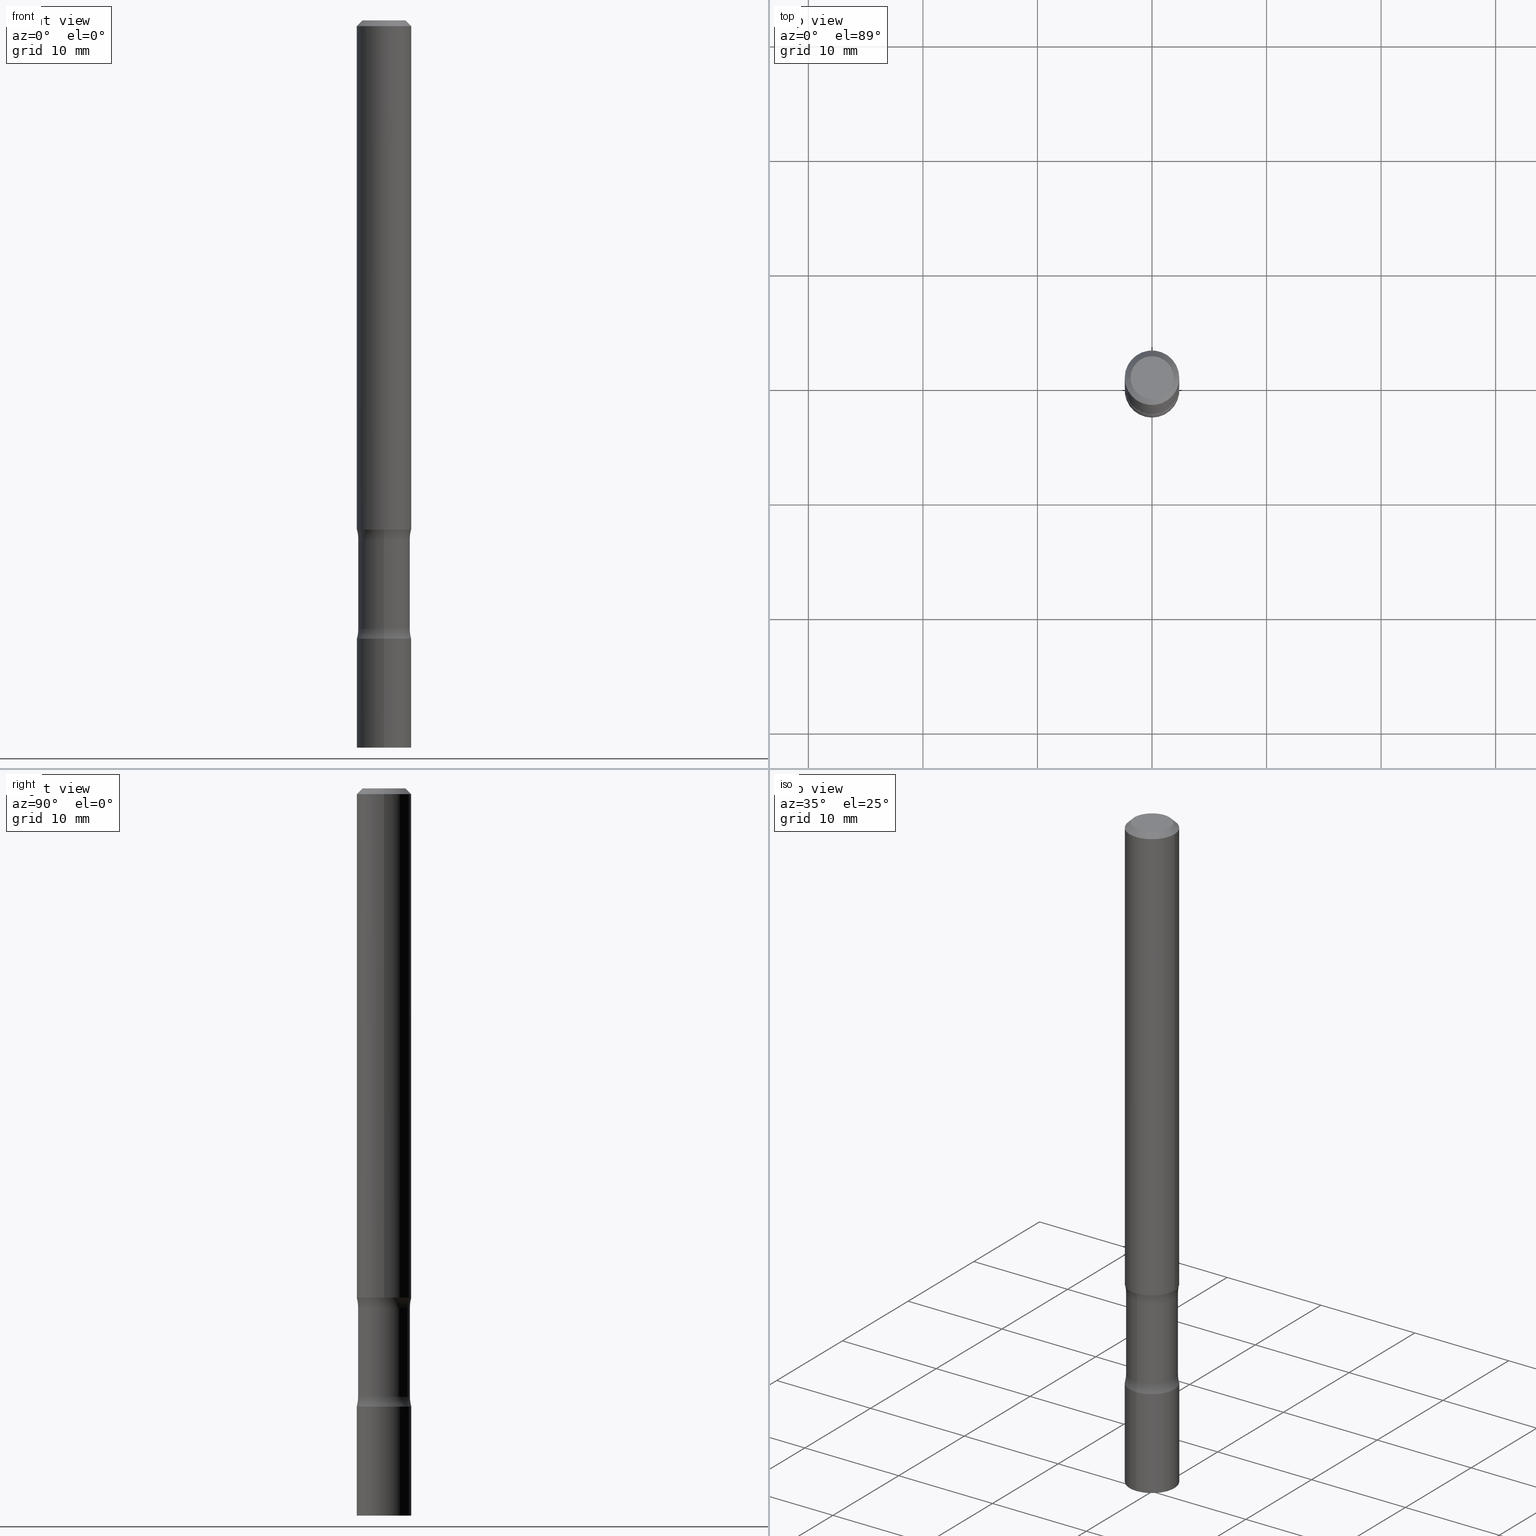
[diagram: canonical four-view strip — front | top / right | iso, engineering-drawing reading convention]
A machine part, canonical four-view strip (front | top / right | iso — engineering-drawing reading convention). The complete STEP part file that produces these views, byte-faithful:
ISO-10303-21;
HEADER;
FILE_DESCRIPTION (( 'STEP AP203' ),
    '1' );
FILE_NAME ('37766.STEP',
    '2024-03-11T13:24:02',
    ( '' ),
    ( '' ),
    'SwSTEP 2.0',
    'SolidWorks 2023',
    '' );
FILE_SCHEMA (( 'CONFIG_CONTROL_DESIGN' ));
ENDSEC;

DATA;
#1 = DIRECTION ( 'NONE',  ( -6.982962677686265922E-15, -1.000000000000000000, 0.000000000000000000 ) ) ;
#2 = PRODUCT ( '37766', '37766', '', ( #291 ) ) ;
#3 = CALENDAR_DATE ( 2024, 11, 3 ) ;
#4 = DIRECTION ( 'NONE',  ( 0.000000000000000000, 0.000000000000000000, 1.000000000000000000 ) ) ;
#5 = APPROVAL_DATE_TIME ( #93, #87 ) ;
#6 = CC_DESIGN_APPROVAL ( #87, ( #13 ) ) ;
#7 = CARTESIAN_POINT ( 'NONE',  ( 0.000000000000000000, 0.000000000000000000, 0.000000000000000000 ) ) ;
#8 = EDGE_LOOP ( 'NONE', ( #505, #57, #426, #196 ) ) ;
#9 = PERSON_AND_ORGANIZATION ( #307, #319 ) ;
#10 = CARTESIAN_POINT ( 'NONE',  ( 5.108949665098794430E-29, -7.307796357737152502E-15, -2.091089789977795821 ) ) ;
#11 = CARTESIAN_POINT ( 'NONE',  ( -6.546527510330356365E-16, -0.09375000000000743849, -2.125000000000000000 ) ) ;
#12 = VERTEX_POINT ( 'NONE', #350 ) ;
#13 = PRODUCT_DEFINITION ( 'UNKNOWN', '', #140, #36 ) ;
#14 = AXIS2_PLACEMENT_3D ( 'NONE', #357, #317, #170 ) ;
#15 = VECTOR ( 'NONE', #54, 39.37007874015748143 ) ;
#16 = ORIENTED_EDGE ( 'NONE', *, *, #464, .F. ) ;
#17 = EDGE_LOOP ( 'NONE', ( #157, #415 ) ) ;
#18 = ORIENTED_EDGE ( 'NONE', *, *, #364, .F. ) ;
#19 = ORIENTED_EDGE ( 'NONE', *, *, #394, .T. ) ;
#20 = ORIENTED_EDGE ( 'NONE', *, *, #483, .T. ) ;
#21 = FACE_OUTER_BOUND ( 'NONE', #8, .T. ) ;
#22 = CIRCLE ( 'NONE', #334, 0.09375000000000001388 ) ;
#23 = ORIENTED_EDGE ( 'NONE', *, *, #452, .T. ) ;
#24 = DIRECTION ( 'NONE',  ( 6.982962677686266711E-15, 1.000000000000000000, -2.913971193241878794E-15 ) ) ;
#25 = ORIENTED_EDGE ( 'NONE', *, *, #125, .F. ) ;
#26 = ORIENTED_EDGE ( 'NONE', *, *, #286, .T. ) ;
#27 = EDGE_CURVE ( 'NONE', #460, #229, #281, .T. ) ;
#28 = ORIENTED_EDGE ( 'NONE', *, *, #27, .T. ) ;
#29 = FACE_OUTER_BOUND ( 'NONE', #218, .T. ) ;
#30 = VERTEX_POINT ( 'NONE', #498 ) ;
#31 = DIRECTION ( 'NONE',  ( 0.7071067811865467956, -7.319954787623254468E-15, -0.7071067811865482389 ) ) ;
#32 = DIRECTION ( 'NONE',  ( -6.982962677686265922E-15, -1.000000000000000000, 2.913971193241880372E-15 ) ) ;
#33 = DIRECTION ( 'NONE',  ( 2.445468806185136597E-29, -3.491481338843145583E-15, -1.000000000000000000 ) ) ;
#34 = DIRECTION ( 'NONE',  ( 1.000000000000000000, -6.982962677686261189E-15, 0.000000000000000000 ) ) ;
#35 = DIRECTION ( 'NONE',  ( 2.577039791092079409E-29, -3.303064199901000429E-15, -1.000000000000000000 ) ) ;
#36 = DESIGN_CONTEXT ( 'detailed design', #453, 'design' ) ;
#37 = CARTESIAN_POINT ( 'NONE',  ( 0.000000000000000000, 0.000000000000000000, 0.000000000000000000 ) ) ;
#38 = DIRECTION ( 'NONE',  ( 2.445335353247201149E-29, -3.491672451045938200E-15, -1.000000000000000000 ) ) ;
#39 = FACE_OUTER_BOUND ( 'NONE', #299, .T. ) ;
#40 = EDGE_LOOP ( 'NONE', ( #301, #191, #342, #369 ) ) ;
#41 = CARTESIAN_POINT ( 'NONE',  ( 5.196621213143415268E-29, -7.419397845041685201E-15, -2.125000000000000000 ) ) ;
#42 = DIRECTION ( 'NONE',  ( -2.445335353247201709E-29, 3.491672451045937805E-15, 1.000000000000000000 ) ) ;
#43 = EDGE_CURVE ( 'NONE', #309, #460, #146, .T. ) ;
#44 = DIRECTION ( 'NONE',  ( -1.000000000000000000, 6.982962677686265922E-15, -4.876176775795935793E-29 ) ) ;
#45 = TOROIDAL_SURFACE ( 'NONE', #482, 0.2140625000000000167, 0.1249999999999999584 ) ;
#46 = AXIS2_PLACEMENT_3D ( 'NONE', #302, #337, #149 ) ;
#47 = CARTESIAN_POINT ( 'NONE',  ( 0.000000000000000000, 0.000000000000000000, 0.000000000000000000 ) ) ;
#48 = AXIS2_PLACEMENT_3D ( 'NONE', #128, #421, #66 ) ;
#49 = DATE_TIME_ROLE ( 'classification_date' ) ;
#50 = ADVANCED_FACE ( 'NONE', ( #126 ), #88, .F. ) ;
#51 = DIRECTION ( 'NONE',  ( -6.982962677686265922E-15, -1.000000000000000000, 3.303064199901000035E-15 ) ) ;
#52 = PERSON_AND_ORGANIZATION_ROLE ( 'classification_officer' ) ;
#53 = ADVANCED_FACE ( 'NONE', ( #361 ), #210, .T. ) ;
#54 = DIRECTION ( 'NONE',  ( -0.7071067811865467956, 2.468850131082249172E-15, -0.7071067811865482389 ) ) ;
#55 = ORIENTED_EDGE ( 'NONE', *, *, #494, .F. ) ;
#56 = AXIS2_PLACEMENT_3D ( 'NONE', #451, #457, #414 ) ;
#57 = ORIENTED_EDGE ( 'NONE', *, *, #274, .T. ) ;
#58 = AXIS2_PLACEMENT_3D ( 'NONE', #207, #42, #175 ) ;
#59 = ADVANCED_FACE ( 'NONE', ( #311 ), #355, .F. ) ;
#60 = CARTESIAN_POINT ( 'NONE',  ( 0.000000000000000000, 0.000000000000000000, 0.000000000000000000 ) ) ;
#61 = AXIS2_PLACEMENT_3D ( 'NONE', #47, #213, #129 ) ;
#62 = EDGE_LOOP ( 'NONE', ( #420, #265 ) ) ;
#63 = EDGE_CURVE ( 'NONE', #460, #309, #404, .T. ) ;
#64 = DIRECTION ( 'NONE',  ( -2.445335353247201709E-29, 3.491672451045937805E-15, 1.000000000000000000 ) ) ;
#65 = ORIENTED_EDGE ( 'NONE', *, *, #143, .F. ) ;
#66 = DIRECTION ( 'NONE',  ( 1.000000000000000000, -6.982962677686266711E-15, 0.000000000000000000 ) ) ;
#67 = EDGE_LOOP ( 'NONE', ( #19, #380 ) ) ;
#68 = EDGE_LOOP ( 'NONE', ( #335, #55, #351, #454 ) ) ;
#69 = VERTEX_POINT ( 'NONE', #406 ) ;
#70 = CARTESIAN_POINT ( 'NONE',  ( -1.468575352647925561E-15, -0.2140625000000063172, -1.783910210022203513 ) ) ;
#71 = AXIS2_PLACEMENT_3D ( 'NONE', #266, #417, #339 ) ;
#72 = AXIS2_PLACEMENT_3D ( 'NONE', #160, #296, #485 ) ;
#73 = AXIS2_PLACEMENT_3D ( 'NONE', #504, #316, #84 ) ;
#74 = VERTEX_POINT ( 'NONE', #484 ) ;
#75 = PERSON_AND_ORGANIZATION ( #307, #319 ) ;
#76 = ORIENTED_EDGE ( 'NONE', *, *, #274, .F. ) ;
#77 = FACE_OUTER_BOUND ( 'NONE', #458, .T. ) ;
#78 = ADVANCED_FACE ( 'NONE', ( #486 ), #294, .F. ) ;
#79 = DIRECTION ( 'NONE',  ( 6.982962677686265922E-15, 1.000000000000000000, -2.913971193241880372E-15 ) ) ;
#80 = FACE_OUTER_BOUND ( 'NONE', #419, .T. ) ;
#81 = PERSON_AND_ORGANIZATION ( #307, #319 ) ;
#82 = AXIS2_PLACEMENT_3D ( 'NONE', #60, #64, #376 ) ;
#83 = ADVANCED_FACE ( 'NONE', ( #375 ), #153, .F. ) ;
#84 = DIRECTION ( 'NONE',  ( 6.860497997771531562E-15, 1.000000000000000000, 0.000000000000000000 ) ) ;
#85 = CARTESIAN_POINT ( 'NONE',  ( 5.196621213143415268E-29, -7.419397845041685201E-15, -2.125000000000000000 ) ) ;
#86 = CIRCLE ( 'NONE', #181, 0.09375000000000001388 ) ;
#87 = APPROVAL ( #117, 'UNSPECIFIED' ) ;
#88 = PLANE ( 'NONE',  #422 ) ;
#89 = CARTESIAN_POINT ( 'NONE',  ( 5.196337625650303527E-29, -7.419803958472619019E-15, -2.125000000000000000 ) ) ;
#90 = EDGE_CURVE ( 'NONE', #343, #30, #225, .T. ) ;
#91 = CARTESIAN_POINT ( 'NONE',  ( 0.000000000000000000, 0.000000000000000000, 0.000000000000000000 ) ) ;
#92 = EDGE_CURVE ( 'NONE', #437, #12, #378, .T. ) ;
#93 = DATE_AND_TIME ( #98, #99 ) ;
#94 = EDGE_CURVE ( 'NONE', #466, #374, #476, .T. ) ;
#95 = DATE_AND_TIME ( #141, #228 ) ;
#96 = CARTESIAN_POINT ( 'NONE',  ( -0.09374999999999979183, 5.848231242562231212E-16, -0.02000000000000000042 ) ) ;
#97 = AXIS2_PLACEMENT_3D ( 'NONE', #85, #38, #502 ) ;
#98 = CALENDAR_DATE ( 2024, 11, 3 ) ;
#99 = LOCAL_TIME ( 9, 24, 2.000000000000000000, #444 ) ;
#100 = CIRCLE ( 'NONE', #48, 0.09374999999999979183 ) ;
#101 = DIRECTION ( 'NONE',  ( -2.577039791092079409E-29, 3.303064199901000035E-15, 1.000000000000000000 ) ) ;
#102 = EDGE_CURVE ( 'NONE', #194, #466, #481, .T. ) ;
#103 = VERTEX_POINT ( 'NONE', #202 ) ;
#104 = DIRECTION ( 'NONE',  ( 6.982962677686265922E-15, 1.000000000000000000, -3.303064199901000429E-15 ) ) ;
#105 = CC_DESIGN_SECURITY_CLASSIFICATION ( #203, ( #140 ) ) ;
#106 = CALENDAR_DATE ( 2024, 11, 3 ) ;
#107 = EDGE_CURVE ( 'NONE', #159, #74, #271, .T. ) ;
#108 = CLOSED_SHELL ( 'NONE', ( #409, #248, #53, #50, #59, #372 ) ) ;
#109 = ORIENTED_EDGE ( 'NONE', *, *, #222, .T. ) ;
#110 = CARTESIAN_POINT ( 'NONE',  ( -6.431716872910290192E-16, -0.09375000000000745237, -2.125000000000000000 ) ) ;
#111 = EDGE_LOOP ( 'NONE', ( #168, #28, #23, #16 ) ) ;
#112 = CARTESIAN_POINT ( 'NONE',  ( 4.279570410823988484E-29, -6.110092342975504671E-15, -1.750000000000000000 ) ) ;
#113 = ORIENTED_EDGE ( 'NONE', *, *, #412, .F. ) ;
#114 = DIRECTION ( 'NONE',  ( -2.445468806185136597E-29, 3.491481338843145583E-15, 1.000000000000000000 ) ) ;
#115 = ORIENTED_EDGE ( 'NONE', *, *, #27, .F. ) ;
#116 = CARTESIAN_POINT ( 'NONE',  ( 6.219201134814764177E-16, 0.08906249999999373002, -1.783910210022204623 ) ) ;
#117 = APPROVAL_STATUS ( 'not_yet_approved' ) ;
#118 = TOROIDAL_SURFACE ( 'NONE', #310, 0.2140625000000000444, 0.1250000000000000278 ) ;
#119 = AXIS2_PLACEMENT_3D ( 'NONE', #358, #236, #122 ) ;
#120 = VECTOR ( 'NONE', #279, 39.37007874015748143 ) ;
#121 = ORIENTED_EDGE ( 'NONE', *, *, #90, .F. ) ;
#122 = DIRECTION ( 'NONE',  ( 6.982962677686266711E-15, 1.000000000000000000, -2.913971193241878794E-15 ) ) ;
#123 = EDGE_LOOP ( 'NONE', ( #121, #459, #268, #25 ) ) ;
#124 = CARTESIAN_POINT ( 'NONE',  ( 0.09374999999999979183, -7.130013140679426072E-16, -0.02000000000000000042 ) ) ;
#125 = EDGE_CURVE ( 'NONE', #30, #12, #100, .T. ) ;
#126 = FACE_OUTER_BOUND ( 'NONE', #62, .T. ) ;
#127 = EDGE_LOOP ( 'NONE', ( #26, #224, #166, #261 ) ) ;
#128 = CARTESIAN_POINT ( 'NONE',  ( 4.890937612370273159E-31, -6.982962677686291609E-17, -0.02000000000000000042 ) ) ;
#129 = DIRECTION ( 'NONE',  ( 1.000000000000000000, -6.982962677686265133E-15, 4.876176775795935793E-29 ) ) ;
#130 = PERSON_AND_ORGANIZATION_ROLE ( 'creator' ) ;
#131 = FACE_OUTER_BOUND ( 'NONE', #67, .T. ) ;
#132 = CIRCLE ( 'NONE', #288, 0.08906250000000003053 ) ;
#133 = CARTESIAN_POINT ( 'NONE',  ( 4.890937612370273159E-31, -6.982962677686291609E-17, -0.02000000000000000042 ) ) ;
#134 = VECTOR ( 'NONE', #31, 39.37007874015748143 ) ;
#135 = FACE_OUTER_BOUND ( 'NONE', #384, .T. ) ;
#136 = EDGE_CURVE ( 'NONE', #12, #30, #379, .T. ) ;
#137 = CYLINDRICAL_SURFACE ( 'NONE', #165, 0.09375000000000001388 ) ;
#138 = DIRECTION ( 'NONE',  ( -1.000000000000000000, 6.982962677686266711E-15, 0.000000000000000000 ) ) ;
#139 = DIRECTION ( 'NONE',  ( 6.982962677686265922E-15, 1.000000000000000000, -3.303064199901000429E-15 ) ) ;
#140 = PRODUCT_DEFINITION_FORMATION_WITH_SPECIFIED_SOURCE ( 'ANY', '', #2, .NOT_KNOWN. ) ;
#141 = CALENDAR_DATE ( 2024, 11, 3 ) ;
#142 = COORDINATED_UNIVERSAL_TIME_OFFSET ( 5, 0, .BEHIND. ) ;
#143 = EDGE_CURVE ( 'NONE', #343, #69, #22, .T. ) ;
#144 = CARTESIAN_POINT ( 'NONE',  ( 0.09374999999999988898, -6.546527510330866166E-16, 4.571415727308684201E-30 ) ) ;
#145 = DIMENSIONAL_EXPONENTS ( 1.000000000000000000, 0.000000000000000000, 0.000000000000000000, 0.000000000000000000, 0.000000000000000000, 0.000000000000000000, 0.000000000000000000 ) ;
#146 = CIRCLE ( 'NONE', #399, 0.09375000000000001388 ) ;
#147 = CIRCLE ( 'NONE', #119, 0.09375000000000006939 ) ;
#148 = CIRCLE ( 'NONE', #425, 0.08906250000000003053 ) ;
#149 = DIRECTION ( 'NONE',  ( -6.982962677686265922E-15, -1.000000000000000000, 2.913971193241880372E-15 ) ) ;
#150 = CARTESIAN_POINT ( 'NONE',  ( 4.314805790192302667E-29, -6.296785408305889994E-15, -1.783910210022204401 ) ) ;
#151 = APPLICATION_PROTOCOL_DEFINITION ( 'international standard', 'config_control_design', 1994, #453 ) ;
#152 = PERSON_AND_ORGANIZATION ( #307, #319 ) ;
#153 = PLANE ( 'NONE',  #174 ) ;
#154 = EDGE_CURVE ( 'NONE', #159, #428, #231, .T. ) ;
#155 = CARTESIAN_POINT ( 'NONE',  ( -6.546527510330875041E-16, -0.09375000000000001388, 3.273442922855567185E-16 ) ) ;
#156 = AXIS2_PLACEMENT_3D ( 'NONE', #373, #176, #179 ) ;
#157 = ORIENTED_EDGE ( 'NONE', *, *, #43, .T. ) ;
#158 = CARTESIAN_POINT ( 'NONE',  ( 6.113338383118004413E-29, -8.729181127614846091E-15, -2.500000000000000000 ) ) ;
#159 = VERTEX_POINT ( 'NONE', #237 ) ;
#160 = CARTESIAN_POINT ( 'NONE',  ( 5.108949665098794430E-29, -7.307796357737152502E-15, -2.091089789977795821 ) ) ;
#161 = CARTESIAN_POINT ( 'NONE',  ( 4.890937612370273159E-31, -6.982962677686291609E-17, -0.02000000000000000042 ) ) ;
#162 = PERSON_AND_ORGANIZATION ( #307, #319 ) ;
#163 = ORIENTED_EDGE ( 'NONE', *, *, #102, .T. ) ;
#164 = DIRECTION ( 'NONE',  ( 2.577039791092079409E-29, -3.303064199901000429E-15, -1.000000000000000000 ) ) ;
#165 = AXIS2_PLACEMENT_3D ( 'NONE', #386, #284, #439 ) ;
#166 = ORIENTED_EDGE ( 'NONE', *, *, #136, .F. ) ;
#167 = CARTESIAN_POINT ( 'NONE',  ( 4.317335664542283686E-29, -6.293162484245211017E-15, -1.783910210022204401 ) ) ;
#168 = ORIENTED_EDGE ( 'NONE', *, *, #63, .F. ) ;
#169 = DIRECTION ( 'NONE',  ( 1.000000000000000000, -6.860497997771530774E-15, 4.843106324085242827E-29 ) ) ;
#170 = DIRECTION ( 'NONE',  ( 1.000000000000000000, -6.982962677686265133E-15, 4.876176775795935793E-29 ) ) ;
#171 = ADVANCED_FACE ( 'NONE', ( #77 ), #270, .T. ) ;
#172 = CALENDAR_DATE ( 2024, 11, 3 ) ;
#173 = AXIS2_PLACEMENT_3D ( 'NONE', #243, #500, #1 ) ;
#174 = AXIS2_PLACEMENT_3D ( 'NONE', #448, #469, #353 ) ;
#175 = DIRECTION ( 'NONE',  ( -6.982962677686265922E-15, -1.000000000000000000, 5.827942386483760744E-15 ) ) ;
#176 = DIRECTION ( 'NONE',  ( -2.438088387897960049E-29, 3.491481338843145188E-15, 1.000000000000000000 ) ) ;
#177 = EDGE_CURVE ( 'NONE', #200, #103, #465, .T. ) ;
#178 = LINE ( 'NONE', #144, #436 ) ;
#179 = DIRECTION ( 'NONE',  ( 1.000000000000000000, -6.982962677686265922E-15, 4.876176775795935793E-29 ) ) ;
#180 = CARTESIAN_POINT ( 'NONE',  ( 4.317335664542283686E-29, -6.293162484245211017E-15, -1.783910210022204401 ) ) ;
#181 = AXIS2_PLACEMENT_3D ( 'NONE', #215, #289, #365 ) ;
#182 = EDGE_LOOP ( 'NONE', ( #258, #468, #490, #312 ) ) ;
#183 = DATE_AND_TIME ( #3, #298 ) ;
#184 = APPLICATION_CONTEXT ( 'configuration controlled 3d designs of mechanical parts and assemblies' ) ;
#185 = DIRECTION ( 'NONE',  ( 2.577039791092079409E-29, -3.303064199901000429E-15, -1.000000000000000000 ) ) ;
#186 = CARTESIAN_POINT ( 'NONE',  ( 0.07374999999999982958, -6.094815207017959226E-16, 3.931526600461596647E-30 ) ) ;
#187 = DIRECTION ( 'NONE',  ( 6.982962677686265922E-15, 1.000000000000000000, -2.913971193241880372E-15 ) ) ;
#188 = DIRECTION ( 'NONE',  ( 6.982962677686265133E-15, 1.000000000000000000, -3.067338098149345144E-15 ) ) ;
#189 = AXIS2_PLACEMENT_3D ( 'NONE', #7, #4, #327 ) ;
#190 = AXIS2_PLACEMENT_3D ( 'NONE', #70, #169, #195 ) ;
#191 = ORIENTED_EDGE ( 'NONE', *, *, #205, .T. ) ;
#192 = ORIENTED_EDGE ( 'NONE', *, *, #43, .F. ) ;
#193 = DIRECTION ( 'NONE',  ( -2.445468806185136877E-29, 3.491481338843145188E-15, 1.000000000000000000 ) ) ;
#194 = VERTEX_POINT ( 'NONE', #432 ) ;
#195 = DIRECTION ( 'NONE',  ( 6.860497997771531562E-15, 1.000000000000000000, 0.000000000000000000 ) ) ;
#196 = ORIENTED_EDGE ( 'NONE', *, *, #452, .F. ) ;
#197 = CARTESIAN_POINT ( 'NONE',  ( 6.219201134814949559E-16, 0.08906249999999139855, -2.500000000000000444 ) ) ;
#198 = PERSON_AND_ORGANIZATION_ROLE ( 'design_supplier' ) ;
#199 = APPLICATION_PROTOCOL_DEFINITION ( 'international standard', 'config_control_design', 1994, #184 ) ;
#200 = VERTEX_POINT ( 'NONE', #116 ) ;
#201 = ORIENTED_EDGE ( 'NONE', *, *, #94, .F. ) ;
#202 = CARTESIAN_POINT ( 'NONE',  ( 6.219201134814847007E-16, 0.08906249999999277245, -2.091089789977796265 ) ) ;
#203 = SECURITY_CLASSIFICATION ( '', '', #348 ) ;
#204 = CC_DESIGN_PERSON_AND_ORGANIZATION_ASSIGNMENT ( #323, #407, ( #2 ) ) ;
#205 = EDGE_CURVE ( 'NONE', #74, #230, #206, .T. ) ;
#206 = LINE ( 'NONE', #232, #292 ) ;
#207 = CARTESIAN_POINT ( 'NONE',  ( 6.113338383118004413E-29, -8.729181127614846091E-15, -2.500000000000000000 ) ) ;
#208 = DIRECTION ( 'NONE',  ( -2.445468806185136597E-29, 3.491481338843145583E-15, 1.000000000000000000 ) ) ;
#209 = CC_DESIGN_DATE_AND_TIME_ASSIGNMENT ( #387, #430, ( #13 ) ) ;
#210 = CONICAL_SURFACE ( 'NONE', #226, 0.09374999999999979183, 0.7853981633974472798 ) ;
#211 = CIRCLE ( 'NONE', #72, 0.08906250000000008604 ) ;
#212 = VECTOR ( 'NONE', #193, 39.37007874015748143 ) ;
#213 = DIRECTION ( 'NONE',  ( -2.445468806185136597E-29, 3.491481338843145583E-15, 1.000000000000000000 ) ) ;
#214 = PERSON_AND_ORGANIZATION ( #307, #319 ) ;
#215 = CARTESIAN_POINT ( 'NONE',  ( 4.279570410823988484E-29, -6.110092342975504671E-15, -1.750000000000000000 ) ) ;
#216 = CIRCLE ( 'NONE', #398, 0.07374999999999982958 ) ;
#217 = FACE_OUTER_BOUND ( 'NONE', #182, .T. ) ;
#218 = EDGE_LOOP ( 'NONE', ( #113, #272, #472, #347 ) ) ;
#219 = VECTOR ( 'NONE', #496, 39.37007874015748143 ) ;
#220 = DIRECTION ( 'NONE',  ( 2.577039791092079409E-29, -3.303064199901000429E-15, -1.000000000000000000 ) ) ;
#221 = CARTESIAN_POINT ( 'NONE',  ( -0.07374999999999982958, 5.499083108677920638E-16, -3.723527850031185562E-30 ) ) ;
#222 = EDGE_CURVE ( 'NONE', #194, #229, #273, .T. ) ;
#223 =( GEOMETRIC_REPRESENTATION_CONTEXT ( 3 ) GLOBAL_UNCERTAINTY_ASSIGNED_CONTEXT ( ( #480 ) ) GLOBAL_UNIT_ASSIGNED_CONTEXT ( ( #427, #324, #408 ) ) REPRESENTATION_CONTEXT ( 'NONE', 'WORKASPACE' ) );
#224 = ORIENTED_EDGE ( 'NONE', *, *, #90, .T. ) ;
#225 = LINE ( 'NONE', #493, #212 ) ;
#226 = AXIS2_PLACEMENT_3D ( 'NONE', #508, #33, #138 ) ;
#227 = CARTESIAN_POINT ( 'NONE',  ( 6.113672015462842613E-29, -8.728703347107864943E-15, -2.500000000000000000 ) ) ;
#228 = LOCAL_TIME ( 9, 24, 2.000000000000000000, #329 ) ;
#229 = VERTEX_POINT ( 'NONE', #385 ) ;
#230 = VERTEX_POINT ( 'NONE', #473 ) ;
#231 = LINE ( 'NONE', #155, #360 ) ;
#232 = CARTESIAN_POINT ( 'NONE',  ( 6.661338147750938256E-16, 0.09375000000000001388, -3.273442922855567185E-16 ) ) ;
#233 = CYLINDRICAL_SURFACE ( 'NONE', #14, 0.09374999999999988898 ) ;
#234 = ADVANCED_FACE ( 'NONE', ( #80 ), #240, .F. ) ;
#235 = CARTESIAN_POINT ( 'NONE',  ( 5.149934974793609077E-16, 0.07374999999999982958, -2.574967487396813906E-16 ) ) ;
#236 = DIRECTION ( 'NONE',  ( 2.577039791092079409E-29, -3.303064199901000429E-15, -1.000000000000000000 ) ) ;
#237 = CARTESIAN_POINT ( 'NONE',  ( -6.546527510330263674E-16, -0.09375000000000872913, -2.499999999999999556 ) ) ;
#238 = CYLINDRICAL_SURFACE ( 'NONE', #455, 0.08906250000000004441 ) ;
#239 = AXIS2_PLACEMENT_3D ( 'NONE', #91, #366, #402 ) ;
#240 = TOROIDAL_SURFACE ( 'NONE', #71, 0.2140625000000000167, 0.1249999999999999584 ) ;
#241 = ADVANCED_FACE ( 'NONE', ( #21 ), #491, .T. ) ;
#242 = CARTESIAN_POINT ( 'NONE',  ( -0.09375000000000001388, -2.423827170101085722E-15, -1.750000000000000000 ) ) ;
#243 = CARTESIAN_POINT ( 'NONE',  ( 1.494790448192259855E-15, 0.2140624999999937716, -1.783910210022205289 ) ) ;
#244 = COORDINATED_UNIVERSAL_TIME_OFFSET ( 5, 0, .BEHIND. ) ;
#245 = ORIENTED_EDGE ( 'NONE', *, *, #177, .F. ) ;
#246 = CARTESIAN_POINT ( 'NONE',  ( 6.162727547309833585E-29, -8.658453033435494328E-15, -2.500000000000000000 ) ) ;
#247 = FACE_OUTER_BOUND ( 'NONE', #127, .T. ) ;
#248 = ADVANCED_FACE ( 'NONE', ( #29 ), #489, .T. ) ;
#249 = APPROVAL_DATE_TIME ( #95, #433 ) ;
#250 = CARTESIAN_POINT ( 'NONE',  ( 5.113694852322929096E-29, -7.301000979552907494E-15, -2.091089789977795821 ) ) ;
#251 = ORIENTED_EDGE ( 'NONE', *, *, #499, .F. ) ;
#252 = SHAPE_DEFINITION_REPRESENTATION ( #479, #501 ) ;
#253 = DIRECTION ( 'NONE',  ( 2.577039791092079409E-29, -3.303064199901000429E-15, -1.000000000000000000 ) ) ;
#254 = ADVANCED_FACE ( 'NONE', ( #131 ), #280, .F. ) ;
#255 = AXIS2_PLACEMENT_3D ( 'NONE', #158, #429, #303 ) ;
#256 = CARTESIAN_POINT ( 'NONE',  ( 5.196337625650303527E-29, -7.419803958472619019E-15, -2.125000000000000000 ) ) ;
#257 = DIRECTION ( 'NONE',  ( 2.577039791092079409E-29, -3.303064199901000429E-15, -1.000000000000000000 ) ) ;
#258 = ORIENTED_EDGE ( 'NONE', *, *, #102, .F. ) ;
#259 = APPROVAL_ROLE ( '' ) ;
#260 = ADVANCED_FACE ( 'NONE', ( #438 ), #393, .F. ) ;
#261 = ORIENTED_EDGE ( 'NONE', *, *, #341, .F. ) ;
#262 = CIRCLE ( 'NONE', #46, 0.09375000000000001388 ) ;
#263 = MANIFOLD_SOLID_BREP ( 'Body-Move/Copy2[2]', #108 ) ;
#264 = FACE_OUTER_BOUND ( 'NONE', #40, .T. ) ;
#265 = ORIENTED_EDGE ( 'NONE', *, *, #412, .T. ) ;
#266 = CARTESIAN_POINT ( 'NONE',  ( 5.113694852322929096E-29, -7.301000979552907494E-15, -2.091089789977795821 ) ) ;
#267 = MANIFOLD_SOLID_BREP ( 'Body-Move/Copy2[4]', #435 ) ;
#268 = ORIENTED_EDGE ( 'NONE', *, *, #341, .T. ) ;
#269 = VERTEX_POINT ( 'NONE', #221 ) ;
#270 = PLANE ( 'NONE',  #397 ) ;
#271 = CIRCLE ( 'NONE', #255, 0.09375000000000001388 ) ;
#272 = ORIENTED_EDGE ( 'NONE', *, *, #92, .T. ) ;
#273 = LINE ( 'NONE', #424, #120 ) ;
#274 = EDGE_CURVE ( 'NONE', #194, #200, #148, .T. ) ;
#275 = DIRECTION ( 'NONE',  ( 2.577039791092079409E-29, -3.303064199901000429E-15, -1.000000000000000000 ) ) ;
#276 = CARTESIAN_POINT ( 'NONE',  ( 4.229947703990773468E-29, -6.181154883509742133E-15, -1.750000000000000000 ) ) ;
#277 = CARTESIAN_POINT ( 'NONE',  ( 6.162727547309833585E-29, -8.658453033435494328E-15, -2.500000000000000000 ) ) ;
#278 = ORIENTED_EDGE ( 'NONE', *, *, #295, .T. ) ;
#279 = DIRECTION ( 'NONE',  ( 2.577039791092079409E-29, -3.303064199901000035E-15, -1.000000000000000000 ) ) ;
#280 = PLANE ( 'NONE',  #97 ) ;
#281 = CIRCLE ( 'NONE', #73, 0.1249999999999999584 ) ;
#282 = AXIS2_PLACEMENT_3D ( 'NONE', #133, #506, #388 ) ;
#283 = DIRECTION ( 'NONE',  ( 1.000000000000000000, -6.982962677686266711E-15, 4.876176775795935793E-29 ) ) ;
#284 = DIRECTION ( 'NONE',  ( -2.445335353247201709E-29, 3.491672451045937805E-15, 1.000000000000000000 ) ) ;
#285 = FACE_OUTER_BOUND ( 'NONE', #123, .T. ) ;
#286 = EDGE_CURVE ( 'NONE', #69, #343, #86, .T. ) ;
#287 = ADVANCED_FACE ( 'NONE', ( #328 ), #45, .F. ) ;
#288 = AXIS2_PLACEMENT_3D ( 'NONE', #167, #474, #356 ) ;
#289 = DIRECTION ( 'NONE',  ( -2.445468806185136597E-29, 3.491481338843145583E-15, 1.000000000000000000 ) ) ;
#290 = DIRECTION ( 'NONE',  ( 6.982962677686265133E-15, 1.000000000000000000, -3.067338098149347116E-15 ) ) ;
#291 = MECHANICAL_CONTEXT ( 'NONE', #184, 'mechanical' ) ;
#292 = VECTOR ( 'NONE', #313, 39.37007874015748143 ) ;
#293 = DIRECTION ( 'NONE',  ( 6.982962677686265922E-15, 1.000000000000000000, -3.303064199901000429E-15 ) ) ;
#294 = TOROIDAL_SURFACE ( 'NONE', #449, 0.2140625000000000444, 0.1250000000000000278 ) ;
#295 = EDGE_CURVE ( 'NONE', #103, #229, #470, .T. ) ;
#296 = DIRECTION ( 'NONE',  ( 2.577039791092079409E-29, -3.303064199901000429E-15, -1.000000000000000000 ) ) ;
#297 = DIRECTION ( 'NONE',  ( 2.577039791092079409E-29, -3.303064199901000429E-15, -1.000000000000000000 ) ) ;
#298 = LOCAL_TIME ( 9, 24, 2.000000000000000000, #400 ) ;
#299 = EDGE_LOOP ( 'NONE', ( #20, #109, #418, #245 ) ) ;
#300 = EDGE_CURVE ( 'NONE', #269, #30, #401, .T. ) ;
#301 = ORIENTED_EDGE ( 'NONE', *, *, #107, .T. ) ;
#302 = CARTESIAN_POINT ( 'NONE',  ( 5.196337625650303527E-29, -7.419803958472619019E-15, -2.125000000000000000 ) ) ;
#303 = DIRECTION ( 'NONE',  ( -6.982962677686265922E-15, -1.000000000000000000, 5.827942386483760744E-15 ) ) ;
#304 = ORIENTED_EDGE ( 'NONE', *, *, #94, .T. ) ;
#305 = ORIENTED_EDGE ( 'NONE', *, *, #107, .F. ) ;
#306 = DIRECTION ( 'NONE',  ( 2.445335353247201149E-29, -3.491672451045938200E-15, -1.000000000000000000 ) ) ;
#307 = PERSON ( 'UNSPECIFIED', 'UNSPECIFIED', 'UNSPECIFIED', ('UNSPECIFIED'), ('UNSPECIFIED'), ('UNSPECIFIED') ) ;
#308 = APPROVAL_DATE_TIME ( #314, #441 ) ;
#309 = VERTEX_POINT ( 'NONE', #363 ) ;
#310 = AXIS2_PLACEMENT_3D ( 'NONE', #443, #185, #293 ) ;
#311 = FACE_OUTER_BOUND ( 'NONE', #383, .T. ) ;
#312 = ORIENTED_EDGE ( 'NONE', *, *, #499, .T. ) ;
#313 = DIRECTION ( 'NONE',  ( -2.445335353247201709E-29, 3.491672451045938200E-15, 1.000000000000000000 ) ) ;
#314 = DATE_AND_TIME ( #172, #333 ) ;
#315 =( LENGTH_UNIT ( ) NAMED_UNIT ( * ) SI_UNIT ( $, .METRE. ) );
#316 = DIRECTION ( 'NONE',  ( 1.000000000000000000, -6.860497997771530774E-15, 4.843106324085242827E-29 ) ) ;
#317 = DIRECTION ( 'NONE',  ( -2.445468806185136597E-29, 3.491481338843145583E-15, 1.000000000000000000 ) ) ;
#318 = APPROVAL_ROLE ( '' ) ;
#319 = ORGANIZATION ( 'UNSPECIFIED', 'UNSPECIFIED', '' ) ;
#320 = CC_DESIGN_PERSON_AND_ORGANIZATION_ASSIGNMENT ( #152, #371, ( #13 ) ) ;
#321 = AXIS2_PLACEMENT_3D ( 'NONE', #41, #101, #51 ) ;
#322 = LENGTH_MEASURE_WITH_UNIT ( LENGTH_MEASURE( 0.02539999999999999897 ), #315 );
#323 = PERSON_AND_ORGANIZATION ( #307, #319 ) ;
#324 =( NAMED_UNIT ( * ) PLANE_ANGLE_UNIT ( ) SI_UNIT ( $, .RADIAN. ) );
#325 = CC_DESIGN_DATE_AND_TIME_ASSIGNMENT ( #183, #49, ( #203 ) ) ;
#326 = APPROVAL_PERSON_ORGANIZATION ( #214, #433, #447 ) ;
#327 = DIRECTION ( 'NONE',  ( 1.000000000000000000, 0.000000000000000000, 0.000000000000000000 ) ) ;
#328 = FACE_OUTER_BOUND ( 'NONE', #111, .T. ) ;
#329 = COORDINATED_UNIVERSAL_TIME_OFFSET ( 5, 0, .BEHIND. ) ;
#330 = APPROVAL_STATUS ( 'not_yet_approved' ) ;
#331 = AXIS2_PLACEMENT_3D ( 'NONE', #10, #253, #188 ) ;
#332 = ADVANCED_FACE ( 'NONE', ( #217 ), #118, .F. ) ;
#333 = LOCAL_TIME ( 9, 24, 2.000000000000000000, #244 ) ;
#334 = AXIS2_PLACEMENT_3D ( 'NONE', #112, #114, #34 ) ;
#335 = ORIENTED_EDGE ( 'NONE', *, *, #92, .F. ) ;
#336 = ORIENTED_EDGE ( 'NONE', *, *, #205, .F. ) ;
#337 = DIRECTION ( 'NONE',  ( -2.445335353247201709E-29, 3.491672451045937805E-15, 1.000000000000000000 ) ) ;
#338 = APPROVAL_PERSON_ORGANIZATION ( #162, #441, #318 ) ;
#339 = DIRECTION ( 'NONE',  ( 6.982962677686265922E-15, 1.000000000000000000, -3.303064199901000429E-15 ) ) ;
#340 = AXIS2_PLACEMENT_3D ( 'NONE', #256, #220, #187 ) ;
#341 = EDGE_CURVE ( 'NONE', #69, #12, #178, .T. ) ;
#342 = ORIENTED_EDGE ( 'NONE', *, *, #394, .F. ) ;
#343 = VERTEX_POINT ( 'NONE', #242 ) ;
#344 = DIRECTION ( 'NONE',  ( -2.445468806185136597E-29, 3.491481338843145583E-15, 1.000000000000000000 ) ) ;
#345 = PERSON_AND_ORGANIZATION ( #307, #319 ) ;
#346 = PRODUCT_RELATED_PRODUCT_CATEGORY ( 'detail', '', ( #2 ) ) ;
#347 = ORIENTED_EDGE ( 'NONE', *, *, #300, .F. ) ;
#348 = SECURITY_CLASSIFICATION_LEVEL ( 'unclassified' ) ;
#349 = ADVANCED_FACE ( 'NONE', ( #39 ), #238, .T. ) ;
#350 = CARTESIAN_POINT ( 'NONE',  ( 0.09374999999999979183, -7.130013140679426072E-16, -0.02000000000000000042 ) ) ;
#351 = ORIENTED_EDGE ( 'NONE', *, *, #300, .T. ) ;
#352 = LOCAL_TIME ( 9, 24, 2.000000000000000000, #142 ) ;
#353 = DIRECTION ( 'NONE',  ( 6.982962677686265922E-15, 1.000000000000000000, -3.303064199901000035E-15 ) ) ;
#354 = DIRECTION ( 'NONE',  ( -2.445335353247201709E-29, 3.491672451045937805E-15, 1.000000000000000000 ) ) ;
#355 = PLANE ( 'NONE',  #156 ) ;
#356 = DIRECTION ( 'NONE',  ( 6.982962677686265133E-15, 1.000000000000000000, -3.067338098149347116E-15 ) ) ;
#357 = CARTESIAN_POINT ( 'NONE',  ( 0.000000000000000000, 0.000000000000000000, 0.000000000000000000 ) ) ;
#358 = CARTESIAN_POINT ( 'NONE',  ( 4.229947703990773468E-29, -6.181154883509742133E-15, -1.750000000000000000 ) ) ;
#359 = AXIS2_PLACEMENT_3D ( 'NONE', #246, #275, #431 ) ;
#360 = VECTOR ( 'NONE', #462, 39.37007874015748143 ) ;
#361 = FACE_OUTER_BOUND ( 'NONE', #68, .T. ) ;
#362 = DIRECTION ( 'NONE',  ( 6.982962677686265133E-15, 1.000000000000000000, -6.134676196298693444E-15 ) ) ;
#363 = CARTESIAN_POINT ( 'NONE',  ( 6.546527510331397661E-16, 0.09374999999999261702, -2.125000000000000444 ) ) ;
#364 = EDGE_CURVE ( 'NONE', #74, #159, #377, .T. ) ;
#365 = DIRECTION ( 'NONE',  ( 1.000000000000000000, -6.982962677686261189E-15, 0.000000000000000000 ) ) ;
#366 = DIRECTION ( 'NONE',  ( -2.445468806185136597E-29, 3.491481338843145583E-15, 1.000000000000000000 ) ) ;
#367 = CC_DESIGN_APPROVAL ( #433, ( #203 ) ) ;
#368 = DIRECTION ( 'NONE',  ( 2.577039791092079409E-29, -3.303064199901000429E-15, -1.000000000000000000 ) ) ;
#369 = ORIENTED_EDGE ( 'NONE', *, *, #154, .F. ) ;
#370 = CC_DESIGN_PERSON_AND_ORGANIZATION_ASSIGNMENT ( #75, #130, ( #140 ) ) ;
#371 = PERSON_AND_ORGANIZATION_ROLE ( 'creator' ) ;
#372 = ADVANCED_FACE ( 'NONE', ( #285 ), #233, .T. ) ;
#373 = CARTESIAN_POINT ( 'NONE',  ( 4.279570410823988484E-29, -6.110092342975504671E-15, -1.750000000000000000 ) ) ;
#374 = VERTEX_POINT ( 'NONE', #471 ) ;
#375 = FACE_OUTER_BOUND ( 'NONE', #410, .T. ) ;
#376 = DIRECTION ( 'NONE',  ( -6.982962677686265922E-15, -1.000000000000000000, 3.491672451045937805E-15 ) ) ;
#377 = CIRCLE ( 'NONE', #58, 0.09375000000000001388 ) ;
#378 = LINE ( 'NONE', #124, #134 ) ;
#379 = CIRCLE ( 'NONE', #507, 0.09374999999999979183 ) ;
#380 = ORIENTED_EDGE ( 'NONE', *, *, #445, .T. ) ;
#381 = ORIENTED_EDGE ( 'NONE', *, *, #364, .T. ) ;
#382 = DIRECTION ( 'NONE',  ( 6.982962677686265922E-15, 1.000000000000000000, -3.491672451045938200E-15 ) ) ;
#383 = EDGE_LOOP ( 'NONE', ( #492, #65 ) ) ;
#384 = EDGE_LOOP ( 'NONE', ( #336, #381, #487, #495 ) ) ;
#385 = CARTESIAN_POINT ( 'NONE',  ( -6.270923951087528204E-16, -0.08906250000000738576, -2.091089789977795821 ) ) ;
#386 = CARTESIAN_POINT ( 'NONE',  ( 0.000000000000000000, 0.000000000000000000, 0.000000000000000000 ) ) ;
#387 = DATE_AND_TIME ( #106, #352 ) ;
#388 = DIRECTION ( 'NONE',  ( -1.000000000000000000, 6.982962677686266711E-15, 0.000000000000000000 ) ) ;
#389 = DIRECTION ( 'NONE',  ( 1.000000000000000000, -6.982962677686266711E-15, 0.000000000000000000 ) ) ;
#390 = CARTESIAN_POINT ( 'NONE',  ( 5.196337625650303527E-29, -7.419803958472619019E-15, -2.125000000000000000 ) ) ;
#391 = ADVANCED_FACE ( 'NONE', ( #135 ), #137, .T. ) ;
#392 = ORIENTED_EDGE ( 'NONE', *, *, #405, .F. ) ;
#393 = PLANE ( 'NONE',  #321 ) ;
#394 = EDGE_CURVE ( 'NONE', #428, #230, #497, .T. ) ;
#395 = DIRECTION ( 'NONE',  ( 2.438088387897960049E-29, -3.491481338843145188E-15, -1.000000000000000000 ) ) ;
#396 = CYLINDRICAL_SURFACE ( 'NONE', #61, 0.09374999999999988898 ) ;
#397 = AXIS2_PLACEMENT_3D ( 'NONE', #227, #306, #382 ) ;
#398 = AXIS2_PLACEMENT_3D ( 'NONE', #37, #208, #283 ) ;
#399 = AXIS2_PLACEMENT_3D ( 'NONE', #390, #440, #79 ) ;
#400 = COORDINATED_UNIVERSAL_TIME_OFFSET ( 5, 0, .BEHIND. ) ;
#401 = LINE ( 'NONE', #96, #15 ) ;
#402 = DIRECTION ( 'NONE',  ( 1.000000000000000000, -6.982962677686266711E-15, 4.876176775795935793E-29 ) ) ;
#403 = CIRCLE ( 'NONE', #239, 0.07374999999999982958 ) ;
#404 = CIRCLE ( 'NONE', #340, 0.09375000000000001388 ) ;
#405 = EDGE_CURVE ( 'NONE', #200, #374, #442, .T. ) ;
#406 = CARTESIAN_POINT ( 'NONE',  ( 0.09375000000000001388, -6.764745094008591386E-15, -1.750000000000000000 ) ) ;
#407 = PERSON_AND_ORGANIZATION_ROLE ( 'design_owner' ) ;
#408 =( NAMED_UNIT ( * ) SI_UNIT ( $, .STERADIAN. ) SOLID_ANGLE_UNIT ( ) );
#409 = ADVANCED_FACE ( 'NONE', ( #247 ), #396, .T. ) ;
#410 = EDGE_LOOP ( 'NONE', ( #251, #201 ) ) ;
#411 = CC_DESIGN_PERSON_AND_ORGANIZATION_ASSIGNMENT ( #9, #52, ( #203 ) ) ;
#412 = EDGE_CURVE ( 'NONE', #437, #269, #403, .T. ) ;
#413 = CIRCLE ( 'NONE', #56, 0.1249999999999999584 ) ;
#414 = DIRECTION ( 'NONE',  ( -6.982962677686265922E-15, -1.000000000000000000, 0.000000000000000000 ) ) ;
#415 = ORIENTED_EDGE ( 'NONE', *, *, #63, .T. ) ;
#416 = CYLINDRICAL_SURFACE ( 'NONE', #82, 0.09375000000000001388 ) ;
#417 = DIRECTION ( 'NONE',  ( 2.577039791092079409E-29, -3.303064199901000429E-15, -1.000000000000000000 ) ) ;
#418 = ORIENTED_EDGE ( 'NONE', *, *, #295, .F. ) ;
#419 = EDGE_LOOP ( 'NONE', ( #115, #192, #456, #278 ) ) ;
#420 = ORIENTED_EDGE ( 'NONE', *, *, #494, .T. ) ;
#421 = DIRECTION ( 'NONE',  ( -2.445468806185136597E-29, 3.491481338843145583E-15, 1.000000000000000000 ) ) ;
#422 = AXIS2_PLACEMENT_3D ( 'NONE', #235, #395, #44 ) ;
#423 = EDGE_LOOP ( 'NONE', ( #76, #163, #304, #392 ) ) ;
#424 = CARTESIAN_POINT ( 'NONE',  ( -6.110131029264656761E-16, -0.08906250000000870415, -2.499999999999999556 ) ) ;
#425 = AXIS2_PLACEMENT_3D ( 'NONE', #180, #257, #290 ) ;
#426 = ORIENTED_EDGE ( 'NONE', *, *, #177, .T. ) ;
#427 =( CONVERSION_BASED_UNIT ( 'INCH', #322 ) LENGTH_UNIT ( ) NAMED_UNIT ( #145 ) );
#428 = VERTEX_POINT ( 'NONE', #11 ) ;
#429 = DIRECTION ( 'NONE',  ( -2.445335353247201709E-29, 3.491672451045937805E-15, 1.000000000000000000 ) ) ;
#430 = DATE_TIME_ROLE ( 'creation_date' ) ;
#431 = DIRECTION ( 'NONE',  ( 6.982962677686265133E-15, 1.000000000000000000, -6.134676196298693444E-15 ) ) ;
#432 = CARTESIAN_POINT ( 'NONE',  ( -6.270923951087616950E-16, -0.08906250000000633105, -1.783910210022204179 ) ) ;
#433 = APPROVAL ( #330, 'UNSPECIFIED' ) ;
#434 = APPROVAL_PERSON_ORGANIZATION ( #345, #87, #259 ) ;
#435 = CLOSED_SHELL ( 'NONE', ( #349, #287, #78, #332, #83, #260, #234, #241 ) ) ;
#436 = VECTOR ( 'NONE', #477, 39.37007874015748143 ) ;
#437 = VERTEX_POINT ( 'NONE', #186 ) ;
#438 = FACE_OUTER_BOUND ( 'NONE', #17, .T. ) ;
#439 = DIRECTION ( 'NONE',  ( -6.982962677686265922E-15, -1.000000000000000000, 3.491672451045937805E-15 ) ) ;
#440 = DIRECTION ( 'NONE',  ( 2.577039791092079409E-29, -3.303064199901000429E-15, -1.000000000000000000 ) ) ;
#441 = APPROVAL ( #503, 'UNSPECIFIED' ) ;
#442 = CIRCLE ( 'NONE', #173, 0.1250000000000000278 ) ;
#443 = CARTESIAN_POINT ( 'NONE',  ( 4.314805790192302667E-29, -6.296785408305889994E-15, -1.783910210022204401 ) ) ;
#444 = COORDINATED_UNIVERSAL_TIME_OFFSET ( 5, 0, .BEHIND. ) ;
#445 = EDGE_CURVE ( 'NONE', #230, #428, #262, .T. ) ;
#446 = MANIFOLD_SOLID_BREP ( 'Body-Move/Copy2[1]', #488 ) ;
#447 = APPROVAL_ROLE ( '' ) ;
#448 = CARTESIAN_POINT ( 'NONE',  ( 4.279570410823988484E-29, -6.110092342975504671E-15, -1.750000000000000000 ) ) ;
#449 = AXIS2_PLACEMENT_3D ( 'NONE', #150, #297, #104 ) ;
#450 = AXIS2_PLACEMENT_3D ( 'NONE', #276, #164, #24 ) ;
#451 = CARTESIAN_POINT ( 'NONE',  ( 1.494790448192267744E-15, 0.2140624999999927169, -2.091089789977796709 ) ) ;
#452 = EDGE_CURVE ( 'NONE', #229, #103, #211, .T. ) ;
#453 = APPLICATION_CONTEXT ( 'configuration controlled 3d designs of mechanical parts and assemblies' ) ;
#454 = ORIENTED_EDGE ( 'NONE', *, *, #125, .T. ) ;
#455 = AXIS2_PLACEMENT_3D ( 'NONE', #277, #35, #362 ) ;
#456 = ORIENTED_EDGE ( 'NONE', *, *, #464, .T. ) ;
#457 = DIRECTION ( 'NONE',  ( -1.000000000000000000, 6.982962677686265922E-15, -4.883557194083112340E-29 ) ) ;
#458 = EDGE_LOOP ( 'NONE', ( #305, #18 ) ) ;
#459 = ORIENTED_EDGE ( 'NONE', *, *, #143, .T. ) ;
#460 = VERTEX_POINT ( 'NONE', #110 ) ;
#461 = CARTESIAN_POINT ( 'NONE',  ( -6.431716872910392743E-16, -0.09375000000000627276, -1.749999999999999556 ) ) ;
#462 = DIRECTION ( 'NONE',  ( -2.445335353247201709E-29, 3.491672451045938200E-15, 1.000000000000000000 ) ) ;
#463 = CC_DESIGN_PERSON_AND_ORGANIZATION_ASSIGNMENT ( #81, #198, ( #140 ) ) ;
#464 = EDGE_CURVE ( 'NONE', #309, #103, #413, .T. ) ;
#465 = LINE ( 'NONE', #197, #219 ) ;
#466 = VERTEX_POINT ( 'NONE', #461 ) ;
#467 = ADVANCED_FACE ( 'NONE', ( #264 ), #416, .T. ) ;
#468 = ORIENTED_EDGE ( 'NONE', *, *, #483, .F. ) ;
#469 = DIRECTION ( 'NONE',  ( 2.577039791092079409E-29, -3.303064199901000035E-15, -1.000000000000000000 ) ) ;
#470 = CIRCLE ( 'NONE', #331, 0.08906250000000008604 ) ;
#471 = CARTESIAN_POINT ( 'NONE',  ( 6.546527510331302998E-16, 0.09374999999999390765, -1.750000000000000222 ) ) ;
#472 = ORIENTED_EDGE ( 'NONE', *, *, #136, .T. ) ;
#473 = CARTESIAN_POINT ( 'NONE',  ( 6.661338147751549624E-16, 0.09374999999999257538, -2.125000000000000444 ) ) ;
#474 = DIRECTION ( 'NONE',  ( 2.577039791092079409E-29, -3.303064199901000429E-15, -1.000000000000000000 ) ) ;
#475 = CC_DESIGN_APPROVAL ( #441, ( #140 ) ) ;
#476 = CIRCLE ( 'NONE', #450, 0.09375000000000006939 ) ;
#477 = DIRECTION ( 'NONE',  ( -2.445468806185136877E-29, 3.491481338843145188E-15, 1.000000000000000000 ) ) ;
#478 = AXIS2_PLACEMENT_3D ( 'NONE', #89, #354, #32 ) ;
#479 = PRODUCT_DEFINITION_SHAPE ( 'NONE', 'NONE',  #13 ) ;
#480 = UNCERTAINTY_MEASURE_WITH_UNIT (LENGTH_MEASURE( 1.000000000000000082E-05 ), #427, 'distance_accuracy_value', 'NONE');
#481 = CIRCLE ( 'NONE', #190, 0.1250000000000000278 ) ;
#482 = AXIS2_PLACEMENT_3D ( 'NONE', #250, #368, #139 ) ;
#483 = EDGE_CURVE ( 'NONE', #200, #194, #132, .T. ) ;
#484 = CARTESIAN_POINT ( 'NONE',  ( 6.661338147751504264E-16, 0.09374999999999128475, -2.500000000000000444 ) ) ;
#485 = DIRECTION ( 'NONE',  ( 6.982962677686265133E-15, 1.000000000000000000, -3.067338098149345144E-15 ) ) ;
#486 = FACE_OUTER_BOUND ( 'NONE', #423, .T. ) ;
#487 = ORIENTED_EDGE ( 'NONE', *, *, #154, .T. ) ;
#488 = CLOSED_SHELL ( 'NONE', ( #467, #391, #254, #171 ) ) ;
#489 = CONICAL_SURFACE ( 'NONE', #282, 0.09374999999999979183, 0.7853981633974472798 ) ;
#490 = ORIENTED_EDGE ( 'NONE', *, *, #405, .T. ) ;
#491 = CYLINDRICAL_SURFACE ( 'NONE', #359, 0.08906250000000004441 ) ;
#492 = ORIENTED_EDGE ( 'NONE', *, *, #286, .F. ) ;
#493 = CARTESIAN_POINT ( 'NONE',  ( -0.09374999999999988898, 6.661338147750931354E-16, -4.611501647113968390E-30 ) ) ;
#494 = EDGE_CURVE ( 'NONE', #269, #437, #216, .T. ) ;
#495 = ORIENTED_EDGE ( 'NONE', *, *, #445, .F. ) ;
#496 = DIRECTION ( 'NONE',  ( 2.577039791092079409E-29, -3.303064199901000035E-15, -1.000000000000000000 ) ) ;
#497 = CIRCLE ( 'NONE', #478, 0.09375000000000001388 ) ;
#498 = CARTESIAN_POINT ( 'NONE',  ( -0.09374999999999979183, 5.848231242562231212E-16, -0.02000000000000000042 ) ) ;
#499 = EDGE_CURVE ( 'NONE', #374, #466, #147, .T. ) ;
#500 = DIRECTION ( 'NONE',  ( -1.000000000000000000, 6.982962677686265922E-15, -4.883557194083112340E-29 ) ) ;
#501 = ADVANCED_BREP_SHAPE_REPRESENTATION ( '37766', ( #446, #263, #267, #189 ), #223 ) ;
#502 = DIRECTION ( 'NONE',  ( 6.982962677686265922E-15, 1.000000000000000000, -3.491672451045938200E-15 ) ) ;
#503 = APPROVAL_STATUS ( 'not_yet_approved' ) ;
#504 = CARTESIAN_POINT ( 'NONE',  ( -1.468575352647917278E-15, -0.2140625000000073164, -2.091089789977794933 ) ) ;
#505 = ORIENTED_EDGE ( 'NONE', *, *, #222, .F. ) ;
#506 = DIRECTION ( 'NONE',  ( 2.445468806185136597E-29, -3.491481338843145583E-15, -1.000000000000000000 ) ) ;
#507 = AXIS2_PLACEMENT_3D ( 'NONE', #161, #344, #389 ) ;
#508 = CARTESIAN_POINT ( 'NONE',  ( 4.890937612370273159E-31, -6.982962677686291609E-17, -0.02000000000000000042 ) ) ;
ENDSEC;
END-ISO-10303-21;
